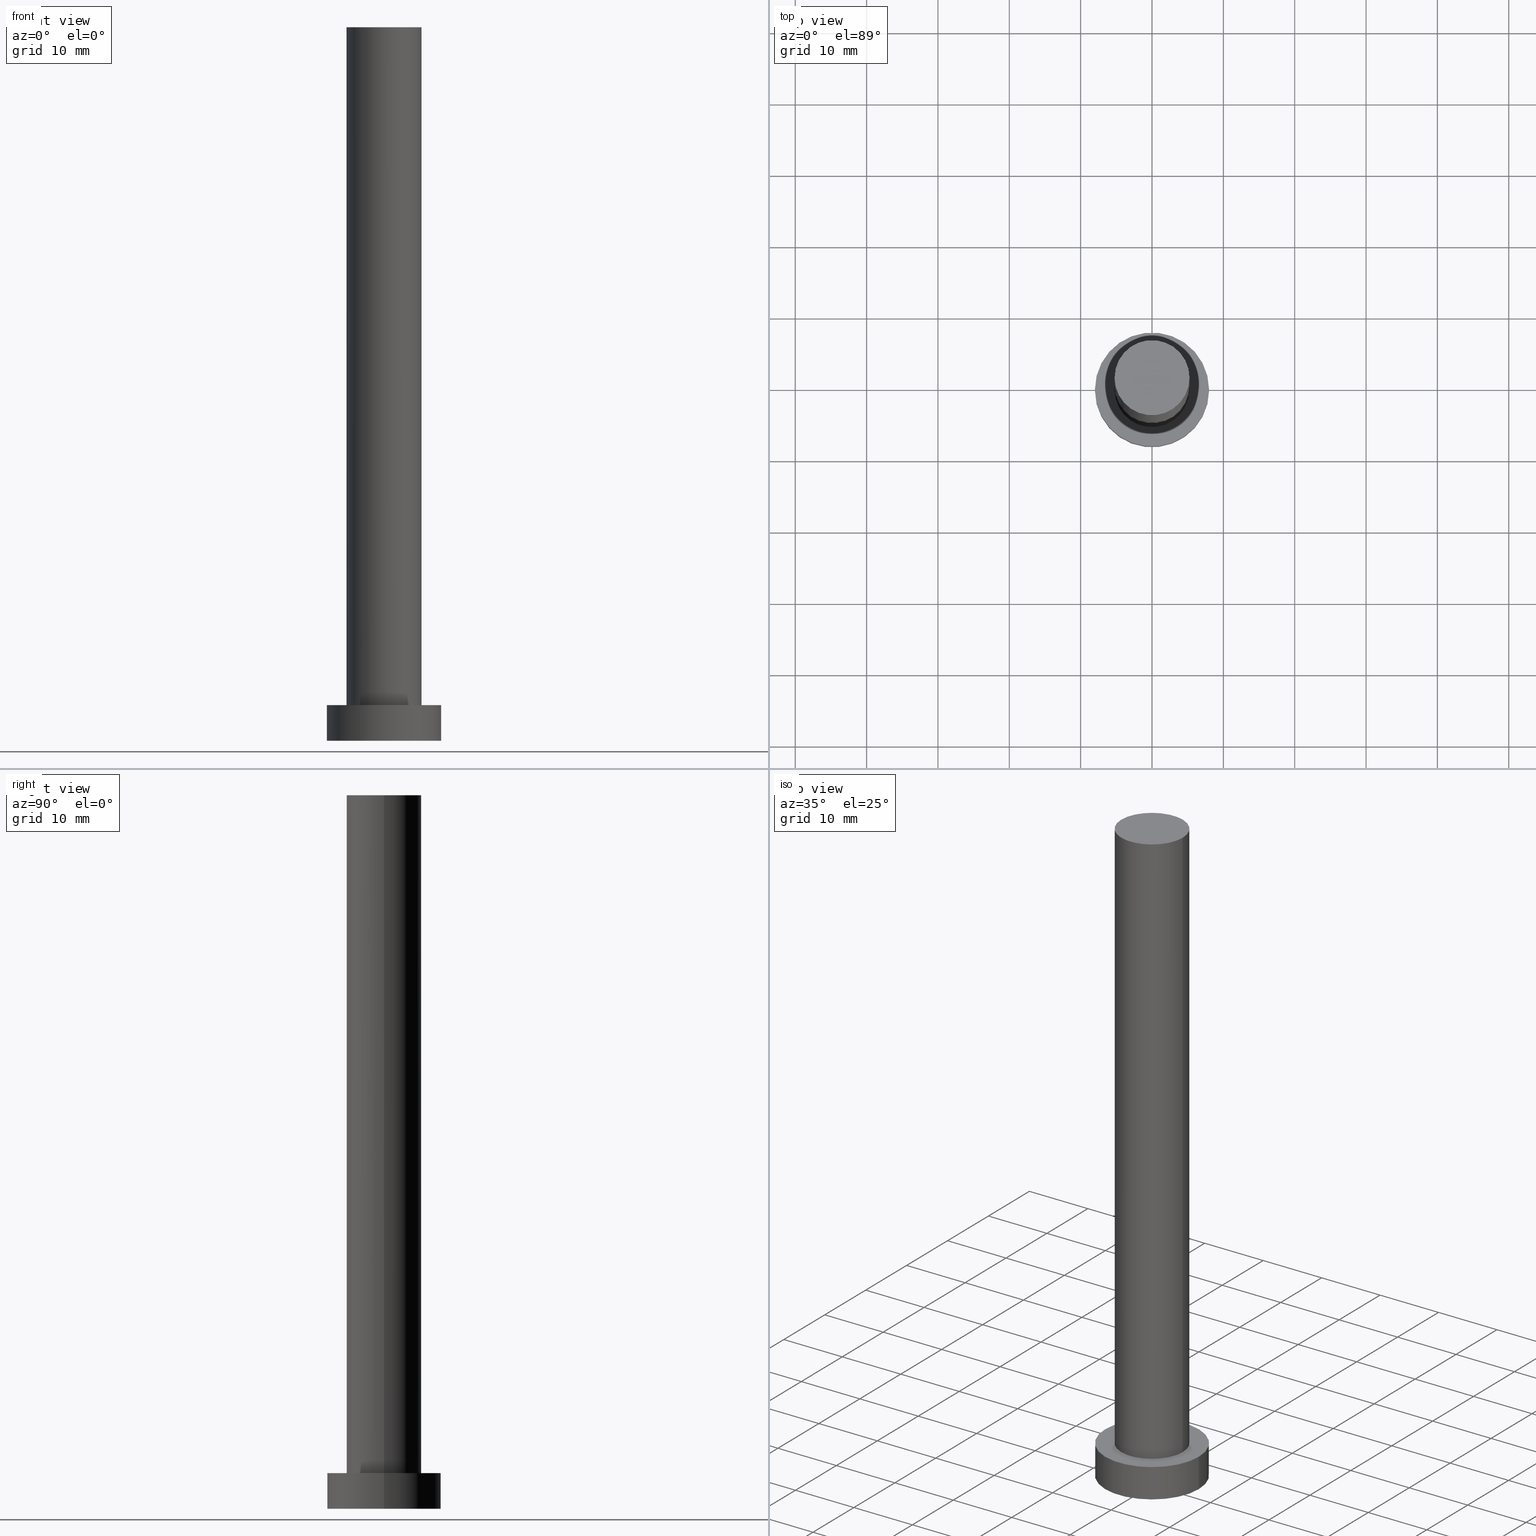
[diagram: canonical four-view strip — front | top / right | iso, engineering-drawing reading convention]
A machine part, canonical four-view strip (front | top / right | iso — engineering-drawing reading convention). The complete STEP part file that produces these views, byte-faithful:
ISO-10303-21;
HEADER;
FILE_DESCRIPTION (( 'STEP AP203' ),
    '1' );
FILE_NAME ('6bed.STEP',
    '2023-02-13T13:14:25',
    ( '' ),
    ( '' ),
    'SwSTEP 2.0',
    'SolidWorks 2019',
    '' );
FILE_SCHEMA (( 'CONFIG_CONTROL_DESIGN' ));
ENDSEC;

DATA;
#1 = CARTESIAN_POINT ( 'NONE',  ( 5.250000000000000000, 6.429395695523604153E-16, 100.0000000000000000 ) ) ;
#2 = CC_DESIGN_PERSON_AND_ORGANIZATION_ASSIGNMENT ( #138, #202, ( #94 ) ) ;
#3 =( NAMED_UNIT ( * ) PLANE_ANGLE_UNIT ( ) SI_UNIT ( $, .RADIAN. ) );
#4 = DIRECTION ( 'NONE',  ( 1.000000000000000000, 0.000000000000000000, 0.000000000000000000 ) ) ;
#5 = AXIS2_PLACEMENT_3D ( 'NONE', #173, #131, #208 ) ;
#6 = APPROVAL_STATUS ( 'not_yet_approved' ) ;
#7 = ORIENTED_EDGE ( 'NONE', *, *, #126, .T. ) ;
#8 = ADVANCED_FACE ( 'NONE', ( #90 ), #56, .T. ) ;
#9 = APPROVAL_PERSON_ORGANIZATION ( #41, #216, #76 ) ;
#10 = EDGE_LOOP ( 'NONE', ( #144, #125 ) ) ;
#11 = DIRECTION ( 'NONE',  ( 1.000000000000000000, 0.000000000000000000, 0.000000000000000000 ) ) ;
#12 = LOCAL_TIME ( 14, 14, 25.00000000000000000, #105 ) ;
#13 = PLANE ( 'NONE',  #169 ) ;
#14 = DIRECTION ( 'NONE',  ( 1.000000000000000000, 0.000000000000000000, 0.000000000000000000 ) ) ;
#15 = CC_DESIGN_PERSON_AND_ORGANIZATION_ASSIGNMENT ( #186, #120, ( #25 ) ) ;
#16 = CARTESIAN_POINT ( 'NONE',  ( -8.000000000000000000, 0.000000000000000000, 5.000000000000000000 ) ) ;
#17 = DIRECTION ( 'NONE',  ( -0.000000000000000000, -0.000000000000000000, -1.000000000000000000 ) ) ;
#18 = ADVANCED_FACE ( 'NONE', ( #152 ), #170, .T. ) ;
#19 = MECHANICAL_CONTEXT ( 'NONE', #218, 'mechanical' ) ;
#20 = PLANE ( 'NONE',  #214 ) ;
#21 = CC_DESIGN_SECURITY_CLASSIFICATION ( #94, ( #25 ) ) ;
#22 = DIRECTION ( 'NONE',  ( -0.000000000000000000, -0.000000000000000000, -1.000000000000000000 ) ) ;
#23 = CALENDAR_DATE ( 2023, 13, 2 ) ;
#24 = PERSON ( 'NEUR�EN�', 'NEUR�EN�', 'NEUR�EN�', ('NEUR�EN�'), ('NEUR�EN�'), ('NEUR�EN�') ) ;
#25 = PRODUCT_DEFINITION_FORMATION_WITH_SPECIFIED_SOURCE ( 'LIBOVOLN�', '', #157, .NOT_KNOWN. ) ;
#26 = VERTEX_POINT ( 'NONE', #16 ) ;
#27 = EDGE_LOOP ( 'NONE', ( #127, #187, #224, #123 ) ) ;
#28 = EDGE_LOOP ( 'NONE', ( #7, #163 ) ) ;
#29 = ADVANCED_FACE ( 'NONE', ( #166 ), #13, .F. ) ;
#30 = ORIENTED_EDGE ( 'NONE', *, *, #204, .F. ) ;
#31 = DIRECTION ( 'NONE',  ( -0.000000000000000000, -0.000000000000000000, -1.000000000000000000 ) ) ;
#32 = CARTESIAN_POINT ( 'NONE',  ( 0.000000000000000000, 0.000000000000000000, 5.000000000000000000 ) ) ;
#33 =( GEOMETRIC_REPRESENTATION_CONTEXT ( 3 ) GLOBAL_UNCERTAINTY_ASSIGNED_CONTEXT ( ( #206 ) ) GLOBAL_UNIT_ASSIGNED_CONTEXT ( ( #196, #3, #155 ) ) REPRESENTATION_CONTEXT ( 'NONE', 'WORKASPACE' ) );
#34 = CARTESIAN_POINT ( 'NONE',  ( 0.000000000000000000, 0.000000000000000000, 100.0000000000000000 ) ) ;
#35 = EDGE_CURVE ( 'NONE', #255, #228, #67, .T. ) ;
#36 = DIRECTION ( 'NONE',  ( -0.000000000000000000, -0.000000000000000000, -1.000000000000000000 ) ) ;
#37 = CARTESIAN_POINT ( 'NONE',  ( 0.000000000000000000, 0.000000000000000000, 100.0000000000000000 ) ) ;
#38 = ADVANCED_FACE ( 'NONE', ( #232 ), #87, .T. ) ;
#39 = CARTESIAN_POINT ( 'NONE',  ( 0.000000000000000000, 0.000000000000000000, 0.000000000000000000 ) ) ;
#40 = APPROVAL_STATUS ( 'not_yet_approved' ) ;
#41 = PERSON_AND_ORGANIZATION ( #24, #64 ) ;
#42 = CIRCLE ( 'NONE', #180, 8.000000000000000000 ) ;
#43 = PERSON_AND_ORGANIZATION ( #24, #64 ) ;
#44 = CC_DESIGN_DATE_AND_TIME_ASSIGNMENT ( #101, #181, ( #94 ) ) ;
#45 = APPROVAL_ROLE ( '' ) ;
#46 = MANIFOLD_SOLID_BREP ( 'P�idat vysunut�m3', #79 ) ;
#47 = APPROVAL_PERSON_ORGANIZATION ( #222, #122, #80 ) ;
#48 = ORIENTED_EDGE ( 'NONE', *, *, #60, .F. ) ;
#49 = ORIENTED_EDGE ( 'NONE', *, *, #126, .F. ) ;
#50 = VECTOR ( 'NONE', #31, 1000.000000000000000 ) ;
#51 = AXIS2_PLACEMENT_3D ( 'NONE', #241, #159, #4 ) ;
#52 = EDGE_LOOP ( 'NONE', ( #242, #146, #162, #102 ) ) ;
#53 = DIRECTION ( 'NONE',  ( -1.000000000000000000, 0.000000000000000000, 0.000000000000000000 ) ) ;
#54 = DIRECTION ( 'NONE',  ( 1.000000000000000000, 0.000000000000000000, -0.000000000000000000 ) ) ;
#55 = CARTESIAN_POINT ( 'NONE',  ( -5.250000000000000000, 0.000000000000000000, 100.0000000000000000 ) ) ;
#56 = PLANE ( 'NONE',  #5 ) ;
#57 = PRODUCT_RELATED_PRODUCT_CATEGORY ( 'detail', '', ( #157 ) ) ;
#58 = DIRECTION ( 'NONE',  ( -0.000000000000000000, -0.000000000000000000, -1.000000000000000000 ) ) ;
#59 = AXIS2_PLACEMENT_3D ( 'NONE', #211, #193, #14 ) ;
#60 = EDGE_CURVE ( 'NONE', #26, #201, #97, .T. ) ;
#61 = APPROVAL_DATE_TIME ( #115, #216 ) ;
#62 = PERSON_AND_ORGANIZATION ( #24, #64 ) ;
#63 = EDGE_CURVE ( 'NONE', #228, #255, #203, .T. ) ;
#64 = ORGANIZATION ( 'NEUR�EN�', 'NEUR�EN�', '' ) ;
#65 = VERTEX_POINT ( 'NONE', #55 ) ;
#66 = APPROVAL_DATE_TIME ( #103, #122 ) ;
#67 = CIRCLE ( 'NONE', #212, 8.000000000000000000 ) ;
#68 = DIRECTION ( 'NONE',  ( -0.000000000000000000, -0.000000000000000000, -1.000000000000000000 ) ) ;
#69 = DIRECTION ( 'NONE',  ( 0.000000000000000000, 0.000000000000000000, 1.000000000000000000 ) ) ;
#70 = CARTESIAN_POINT ( 'NONE',  ( 0.000000000000000000, 0.000000000000000000, 0.000000000000000000 ) ) ;
#71 = AXIS2_PLACEMENT_3D ( 'NONE', #234, #233, #213 ) ;
#72 = CYLINDRICAL_SURFACE ( 'NONE', #71, 8.000000000000000000 ) ;
#73 = CARTESIAN_POINT ( 'NONE',  ( 0.000000000000000000, 0.000000000000000000, 5.000000000000000000 ) ) ;
#74 = PERSON_AND_ORGANIZATION ( #24, #64 ) ;
#75 = CARTESIAN_POINT ( 'NONE',  ( 5.250000000000000000, 6.429395695523604153E-16, 5.000000000000000000 ) ) ;
#76 = APPROVAL_ROLE ( '' ) ;
#77 = DATE_AND_TIME ( #99, #197 ) ;
#78 = APPLICATION_CONTEXT ( 'configuration controlled 3d designs of mechanical parts and assemblies' ) ;
#79 = CLOSED_SHELL ( 'NONE', ( #38, #172, #93, #198, #29, #18, #8 ) ) ;
#80 = APPROVAL_ROLE ( '' ) ;
#81 = ORIENTED_EDGE ( 'NONE', *, *, #236, .F. ) ;
#82 = ORIENTED_EDGE ( 'NONE', *, *, #236, .T. ) ;
#83 = ORIENTED_EDGE ( 'NONE', *, *, #149, .T. ) ;
#84 = LOCAL_TIME ( 14, 14, 25.00000000000000000, #223 ) ;
#85 = EDGE_LOOP ( 'NONE', ( #246, #49, #165, #82 ) ) ;
#86 = DIRECTION ( 'NONE',  ( 0.000000000000000000, 0.000000000000000000, 1.000000000000000000 ) ) ;
#87 = CYLINDRICAL_SURFACE ( 'NONE', #143, 5.250000000000000000 ) ;
#88 = CIRCLE ( 'NONE', #51, 5.250000000000000000 ) ;
#89 = EDGE_CURVE ( 'NONE', #250, #225, #147, .T. ) ;
#90 = FACE_OUTER_BOUND ( 'NONE', #28, .T. ) ;
#91 = CARTESIAN_POINT ( 'NONE',  ( 0.000000000000000000, 0.000000000000000000, 5.000000000000000000 ) ) ;
#92 = LINE ( 'NONE', #237, #110 ) ;
#93 = ADVANCED_FACE ( 'NONE', ( #129 ), #230, .T. ) ;
#94 = SECURITY_CLASSIFICATION ( '', '', #226 ) ;
#95 = DIRECTION ( 'NONE',  ( 1.000000000000000000, 0.000000000000000000, 0.000000000000000000 ) ) ;
#96 = CIRCLE ( 'NONE', #164, 5.250000000000000000 ) ;
#97 = CIRCLE ( 'NONE', #59, 8.000000000000000000 ) ;
#98 = CC_DESIGN_PERSON_AND_ORGANIZATION_ASSIGNMENT ( #178, #137, ( #157 ) ) ;
#99 = CALENDAR_DATE ( 2023, 13, 2 ) ;
#100 = AXIS2_PLACEMENT_3D ( 'NONE', #239, #235, #215 ) ;
#101 = DATE_AND_TIME ( #106, #84 ) ;
#102 = ORIENTED_EDGE ( 'NONE', *, *, #145, .F. ) ;
#103 = DATE_AND_TIME ( #139, #12 ) ;
#104 = CC_DESIGN_DATE_AND_TIME_ASSIGNMENT ( #176, #219, ( #229 ) ) ;
#105 = COORDINATED_UNIVERSAL_TIME_OFFSET ( 1, 0, .AHEAD. ) ;
#106 = CALENDAR_DATE ( 2023, 13, 2 ) ;
#107 = DIRECTION ( 'NONE',  ( 0.000000000000000000, 0.000000000000000000, 1.000000000000000000 ) ) ;
#108 = AXIS2_PLACEMENT_3D ( 'NONE', #128, #69, #109 ) ;
#109 = DIRECTION ( 'NONE',  ( 1.000000000000000000, 0.000000000000000000, 0.000000000000000000 ) ) ;
#110 = VECTOR ( 'NONE', #22, 1000.000000000000000 ) ;
#111 = DIRECTION ( 'NONE',  ( 1.000000000000000000, 0.000000000000000000, 0.000000000000000000 ) ) ;
#112 = DIRECTION ( 'NONE',  ( 1.000000000000000000, 0.000000000000000000, 0.000000000000000000 ) ) ;
#113 = LINE ( 'NONE', #194, #184 ) ;
#114 = APPLICATION_PROTOCOL_DEFINITION ( 'international standard', 'config_control_design', 1994, #78 ) ;
#115 = DATE_AND_TIME ( #23, #227 ) ;
#116 = DIRECTION ( 'NONE',  ( 1.000000000000000000, 0.000000000000000000, -0.000000000000000000 ) ) ;
#117 = PRODUCT_DEFINITION_SHAPE ( 'NONE', 'NONE',  #229 ) ;
#118 = DIRECTION ( 'NONE',  ( 0.000000000000000000, 0.000000000000000000, 1.000000000000000000 ) ) ;
#119 = CARTESIAN_POINT ( 'NONE',  ( 8.000000000000000000, 9.797174393178825657E-16, 5.000000000000000000 ) ) ;
#120 = PERSON_AND_ORGANIZATION_ROLE ( 'creator' ) ;
#121 = ORIENTED_EDGE ( 'NONE', *, *, #63, .T. ) ;
#122 = APPROVAL ( #161, 'NEUR�EN�' ) ;
#123 = ORIENTED_EDGE ( 'NONE', *, *, #191, .F. ) ;
#124 = EDGE_LOOP ( 'NONE', ( #81, #247 ) ) ;
#125 = ORIENTED_EDGE ( 'NONE', *, *, #35, .F. ) ;
#126 = EDGE_CURVE ( 'NONE', #65, #250, #96, .T. ) ;
#127 = ORIENTED_EDGE ( 'NONE', *, *, #149, .F. ) ;
#128 = CARTESIAN_POINT ( 'NONE',  ( 0.000000000000000000, 0.000000000000000000, 100.0000000000000000 ) ) ;
#129 = FACE_OUTER_BOUND ( 'NONE', #188, .T. ) ;
#130 = CC_DESIGN_APPROVAL ( #122, ( #94 ) ) ;
#131 = DIRECTION ( 'NONE',  ( 0.000000000000000000, 0.000000000000000000, 1.000000000000000000 ) ) ;
#132 = EDGE_CURVE ( 'NONE', #250, #65, #153, .T. ) ;
#133 = AXIS2_PLACEMENT_3D ( 'NONE', #32, #17, #53 ) ;
#134 = CARTESIAN_POINT ( 'NONE',  ( -5.250000000000000000, 0.000000000000000000, 5.000000000000000000 ) ) ;
#135 = DIRECTION ( 'NONE',  ( 0.000000000000000000, 0.000000000000000000, 1.000000000000000000 ) ) ;
#136 = CIRCLE ( 'NONE', #100, 5.250000000000000000 ) ;
#137 = PERSON_AND_ORGANIZATION_ROLE ( 'design_owner' ) ;
#138 = PERSON_AND_ORGANIZATION ( #24, #64 ) ;
#139 = CALENDAR_DATE ( 2023, 13, 2 ) ;
#140 = VERTEX_POINT ( 'NONE', #134 ) ;
#141 = SHAPE_DEFINITION_REPRESENTATION ( #117, #177 ) ;
#142 = EDGE_LOOP ( 'NONE', ( #183, #83 ) ) ;
#143 = AXIS2_PLACEMENT_3D ( 'NONE', #34, #68, #251 ) ;
#144 = ORIENTED_EDGE ( 'NONE', *, *, #63, .F. ) ;
#145 = EDGE_CURVE ( 'NONE', #65, #140, #254, .T. ) ;
#146 = ORIENTED_EDGE ( 'NONE', *, *, #89, .T. ) ;
#147 = LINE ( 'NONE', #231, #248 ) ;
#148 = CARTESIAN_POINT ( 'NONE',  ( -5.250000000000000000, 0.000000000000000000, 100.0000000000000000 ) ) ;
#149 = EDGE_CURVE ( 'NONE', #201, #26, #42, .T. ) ;
#150 = DIRECTION ( 'NONE',  ( -1.000000000000000000, 0.000000000000000000, 0.000000000000000000 ) ) ;
#151 = APPROVAL_PERSON_ORGANIZATION ( #43, #168, #45 ) ;
#152 = FACE_OUTER_BOUND ( 'NONE', #85, .T. ) ;
#153 = CIRCLE ( 'NONE', #108, 5.250000000000000000 ) ;
#154 = DIRECTION ( 'NONE',  ( 1.000000000000000000, 0.000000000000000000, 0.000000000000000000 ) ) ;
#155 =( NAMED_UNIT ( * ) SI_UNIT ( $, .STERADIAN. ) SOLID_ANGLE_UNIT ( ) );
#156 = PERSON_AND_ORGANIZATION_ROLE ( 'creator' ) ;
#157 = PRODUCT ( '6bed', '6bed', '', ( #19 ) ) ;
#158 = CALENDAR_DATE ( 2023, 13, 2 ) ;
#159 = DIRECTION ( 'NONE',  ( 0.000000000000000000, 0.000000000000000000, 1.000000000000000000 ) ) ;
#160 = PERSON_AND_ORGANIZATION_ROLE ( 'design_supplier' ) ;
#161 = APPROVAL_STATUS ( 'not_yet_approved' ) ;
#162 = ORIENTED_EDGE ( 'NONE', *, *, #200, .T. ) ;
#163 = ORIENTED_EDGE ( 'NONE', *, *, #132, .T. ) ;
#164 = AXIS2_PLACEMENT_3D ( 'NONE', #171, #86, #112 ) ;
#165 = ORIENTED_EDGE ( 'NONE', *, *, #145, .T. ) ;
#166 = FACE_OUTER_BOUND ( 'NONE', #10, .T. ) ;
#167 = DIRECTION ( 'NONE',  ( 0.000000000000000000, 0.000000000000000000, 1.000000000000000000 ) ) ;
#168 = APPROVAL ( #6, 'NEUR�EN�' ) ;
#169 = AXIS2_PLACEMENT_3D ( 'NONE', #210, #253, #54 ) ;
#170 = CYLINDRICAL_SURFACE ( 'NONE', #179, 5.250000000000000000 ) ;
#171 = CARTESIAN_POINT ( 'NONE',  ( 0.000000000000000000, 0.000000000000000000, 100.0000000000000000 ) ) ;
#172 = ADVANCED_FACE ( 'NONE', ( #192 ), #72, .T. ) ;
#173 = CARTESIAN_POINT ( 'NONE',  ( 0.000000000000000000, 0.000000000000000000, 100.0000000000000000 ) ) ;
#174 = FACE_OUTER_BOUND ( 'NONE', #142, .T. ) ;
#175 = CARTESIAN_POINT ( 'NONE',  ( 8.000000000000000000, 9.797174393178825657E-16, 0.000000000000000000 ) ) ;
#176 = DATE_AND_TIME ( #158, #240 ) ;
#177 = ADVANCED_BREP_SHAPE_REPRESENTATION ( '6bed', ( #46, #209 ), #33 ) ;
#178 = PERSON_AND_ORGANIZATION ( #24, #64 ) ;
#179 = AXIS2_PLACEMENT_3D ( 'NONE', #37, #190, #150 ) ;
#180 = AXIS2_PLACEMENT_3D ( 'NONE', #73, #189, #111 ) ;
#181 = DATE_TIME_ROLE ( 'classification_date' ) ;
#182 = CC_DESIGN_PERSON_AND_ORGANIZATION_ASSIGNMENT ( #62, #160, ( #25 ) ) ;
#183 = ORIENTED_EDGE ( 'NONE', *, *, #60, .T. ) ;
#184 = VECTOR ( 'NONE', #58, 1000.000000000000000 ) ;
#185 = CC_DESIGN_APPROVAL ( #216, ( #229 ) ) ;
#186 = PERSON_AND_ORGANIZATION ( #24, #64 ) ;
#187 = ORIENTED_EDGE ( 'NONE', *, *, #204, .T. ) ;
#188 = EDGE_LOOP ( 'NONE', ( #30, #48, #243, #121 ) ) ;
#189 = DIRECTION ( 'NONE',  ( 0.000000000000000000, 0.000000000000000000, 1.000000000000000000 ) ) ;
#190 = DIRECTION ( 'NONE',  ( -0.000000000000000000, -0.000000000000000000, -1.000000000000000000 ) ) ;
#191 = EDGE_CURVE ( 'NONE', #26, #228, #113, .T. ) ;
#192 = FACE_OUTER_BOUND ( 'NONE', #27, .T. ) ;
#193 = DIRECTION ( 'NONE',  ( 0.000000000000000000, 0.000000000000000000, 1.000000000000000000 ) ) ;
#194 = CARTESIAN_POINT ( 'NONE',  ( -8.000000000000000000, 0.000000000000000000, 5.000000000000000000 ) ) ;
#195 = CARTESIAN_POINT ( 'NONE',  ( -8.000000000000000000, 0.000000000000000000, 0.000000000000000000 ) ) ;
#196 =( LENGTH_UNIT ( ) NAMED_UNIT ( * ) SI_UNIT ( .MILLI., .METRE. ) );
#197 = LOCAL_TIME ( 14, 14, 25.00000000000000000, #199 ) ;
#198 = ADVANCED_FACE ( 'NONE', ( #205, #174 ), #20, .T. ) ;
#199 = COORDINATED_UNIVERSAL_TIME_OFFSET ( 1, 0, .AHEAD. ) ;
#200 = EDGE_CURVE ( 'NONE', #225, #140, #136, .T. ) ;
#201 = VERTEX_POINT ( 'NONE', #119 ) ;
#202 = PERSON_AND_ORGANIZATION_ROLE ( 'classification_officer' ) ;
#203 = CIRCLE ( 'NONE', #249, 8.000000000000000000 ) ;
#204 = EDGE_CURVE ( 'NONE', #201, #255, #92, .T. ) ;
#205 = FACE_BOUND ( 'NONE', #124, .T. ) ;
#206 = UNCERTAINTY_MEASURE_WITH_UNIT (LENGTH_MEASURE( 1.000000000000000082E-05 ), #196, 'distance_accuracy_value', 'NONE');
#207 = CC_DESIGN_PERSON_AND_ORGANIZATION_ASSIGNMENT ( #74, #156, ( #229 ) ) ;
#208 = DIRECTION ( 'NONE',  ( 1.000000000000000000, 0.000000000000000000, -0.000000000000000000 ) ) ;
#209 = AXIS2_PLACEMENT_3D ( 'NONE', #39, #135, #95 ) ;
#210 = CARTESIAN_POINT ( 'NONE',  ( 0.000000000000000000, 0.000000000000000000, 0.000000000000000000 ) ) ;
#211 = CARTESIAN_POINT ( 'NONE',  ( 0.000000000000000000, 0.000000000000000000, 5.000000000000000000 ) ) ;
#212 = AXIS2_PLACEMENT_3D ( 'NONE', #70, #167, #154 ) ;
#213 = DIRECTION ( 'NONE',  ( -1.000000000000000000, 0.000000000000000000, 0.000000000000000000 ) ) ;
#214 = AXIS2_PLACEMENT_3D ( 'NONE', #91, #118, #116 ) ;
#215 = DIRECTION ( 'NONE',  ( 1.000000000000000000, 0.000000000000000000, 0.000000000000000000 ) ) ;
#216 = APPROVAL ( #40, 'NEUR�EN�' ) ;
#217 = COORDINATED_UNIVERSAL_TIME_OFFSET ( 1, 0, .AHEAD. ) ;
#218 = APPLICATION_CONTEXT ( 'configuration controlled 3d designs of mechanical parts and assemblies' ) ;
#219 = DATE_TIME_ROLE ( 'creation_date' ) ;
#220 = DESIGN_CONTEXT ( 'detailed design', #78, 'design' ) ;
#221 = COORDINATED_UNIVERSAL_TIME_OFFSET ( 1, 0, .AHEAD. ) ;
#222 = PERSON_AND_ORGANIZATION ( #24, #64 ) ;
#223 = COORDINATED_UNIVERSAL_TIME_OFFSET ( 1, 0, .AHEAD. ) ;
#224 = ORIENTED_EDGE ( 'NONE', *, *, #35, .T. ) ;
#225 = VERTEX_POINT ( 'NONE', #75 ) ;
#226 = SECURITY_CLASSIFICATION_LEVEL ( 'unclassified' ) ;
#227 = LOCAL_TIME ( 14, 14, 25.00000000000000000, #221 ) ;
#228 = VERTEX_POINT ( 'NONE', #195 ) ;
#229 = PRODUCT_DEFINITION ( 'NEZN�M�', '', #25, #220 ) ;
#230 = CYLINDRICAL_SURFACE ( 'NONE', #133, 8.000000000000000000 ) ;
#231 = CARTESIAN_POINT ( 'NONE',  ( 5.250000000000000000, 6.429395695523604153E-16, 100.0000000000000000 ) ) ;
#232 = FACE_OUTER_BOUND ( 'NONE', #52, .T. ) ;
#233 = DIRECTION ( 'NONE',  ( -0.000000000000000000, -0.000000000000000000, -1.000000000000000000 ) ) ;
#234 = CARTESIAN_POINT ( 'NONE',  ( 0.000000000000000000, 0.000000000000000000, 5.000000000000000000 ) ) ;
#235 = DIRECTION ( 'NONE',  ( 0.000000000000000000, 0.000000000000000000, 1.000000000000000000 ) ) ;
#236 = EDGE_CURVE ( 'NONE', #140, #225, #88, .T. ) ;
#237 = CARTESIAN_POINT ( 'NONE',  ( 8.000000000000000000, 9.797174393178825657E-16, 5.000000000000000000 ) ) ;
#238 = APPLICATION_PROTOCOL_DEFINITION ( 'international standard', 'config_control_design', 1994, #218 ) ;
#239 = CARTESIAN_POINT ( 'NONE',  ( 0.000000000000000000, 0.000000000000000000, 5.000000000000000000 ) ) ;
#240 = LOCAL_TIME ( 14, 14, 25.00000000000000000, #217 ) ;
#241 = CARTESIAN_POINT ( 'NONE',  ( 0.000000000000000000, 0.000000000000000000, 5.000000000000000000 ) ) ;
#242 = ORIENTED_EDGE ( 'NONE', *, *, #132, .F. ) ;
#243 = ORIENTED_EDGE ( 'NONE', *, *, #191, .T. ) ;
#244 = CC_DESIGN_APPROVAL ( #168, ( #25 ) ) ;
#245 = APPROVAL_DATE_TIME ( #77, #168 ) ;
#246 = ORIENTED_EDGE ( 'NONE', *, *, #89, .F. ) ;
#247 = ORIENTED_EDGE ( 'NONE', *, *, #200, .F. ) ;
#248 = VECTOR ( 'NONE', #36, 1000.000000000000000 ) ;
#249 = AXIS2_PLACEMENT_3D ( 'NONE', #252, #107, #11 ) ;
#250 = VERTEX_POINT ( 'NONE', #1 ) ;
#251 = DIRECTION ( 'NONE',  ( -1.000000000000000000, 0.000000000000000000, 0.000000000000000000 ) ) ;
#252 = CARTESIAN_POINT ( 'NONE',  ( 0.000000000000000000, 0.000000000000000000, 0.000000000000000000 ) ) ;
#253 = DIRECTION ( 'NONE',  ( 0.000000000000000000, 0.000000000000000000, 1.000000000000000000 ) ) ;
#254 = LINE ( 'NONE', #148, #50 ) ;
#255 = VERTEX_POINT ( 'NONE', #175 ) ;
ENDSEC;
END-ISO-10303-21;
